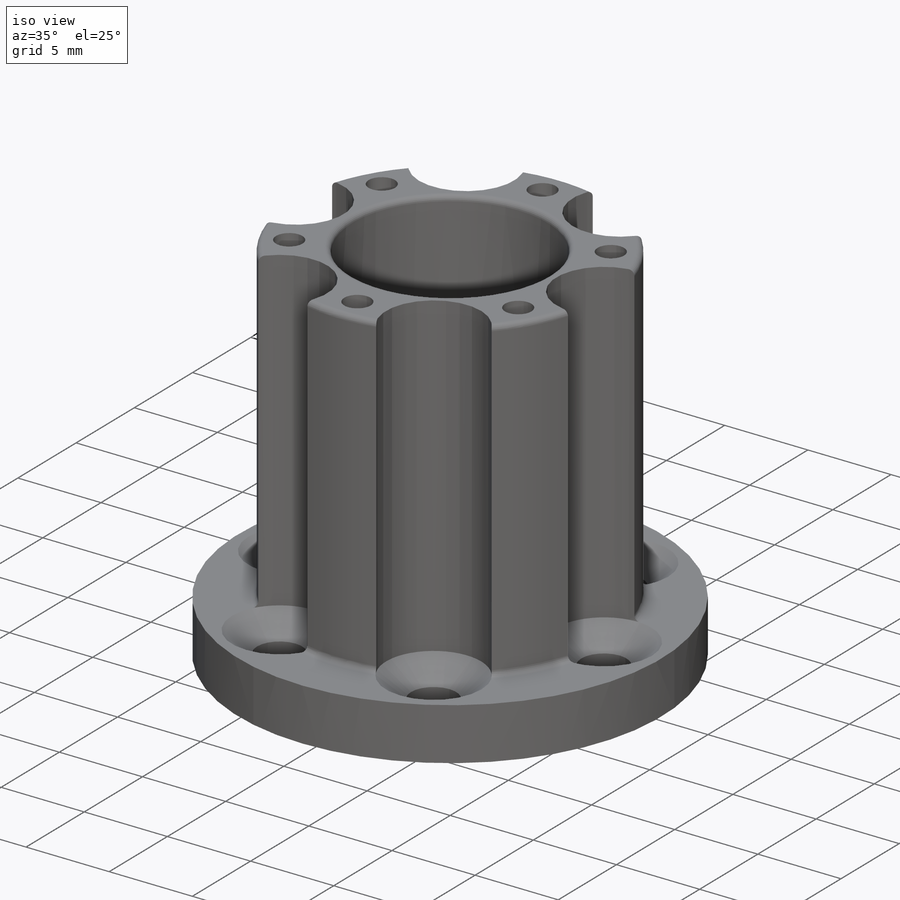
[diagram: iso view]
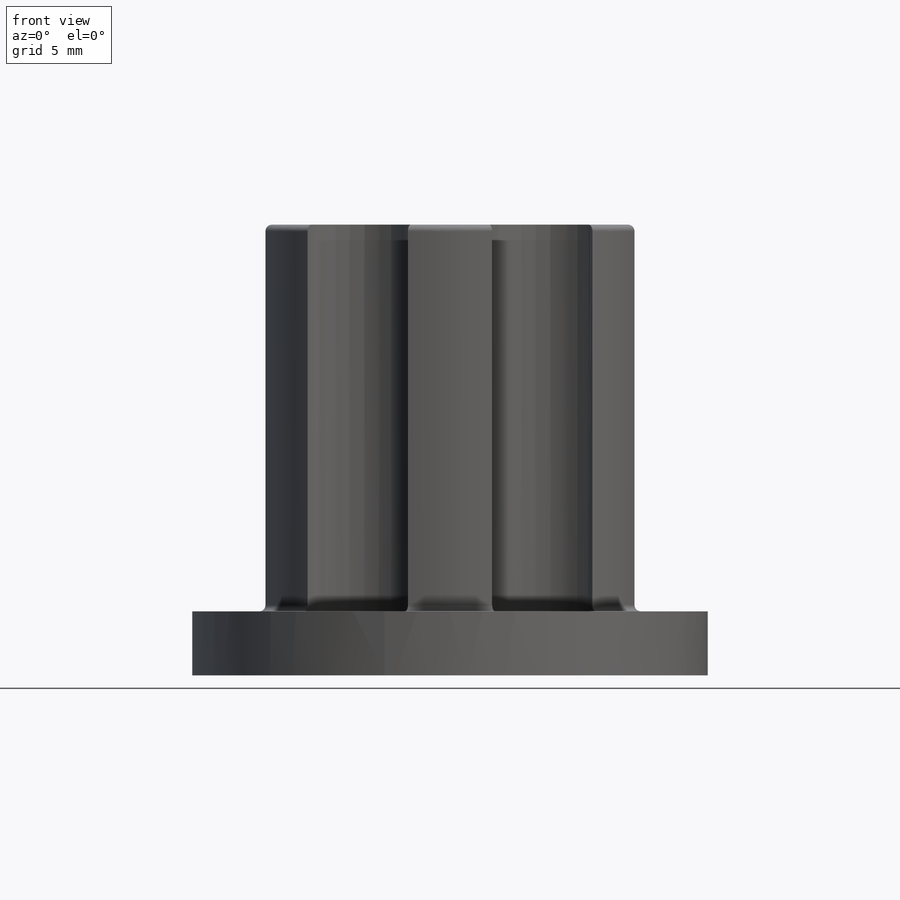
[diagram: front view]
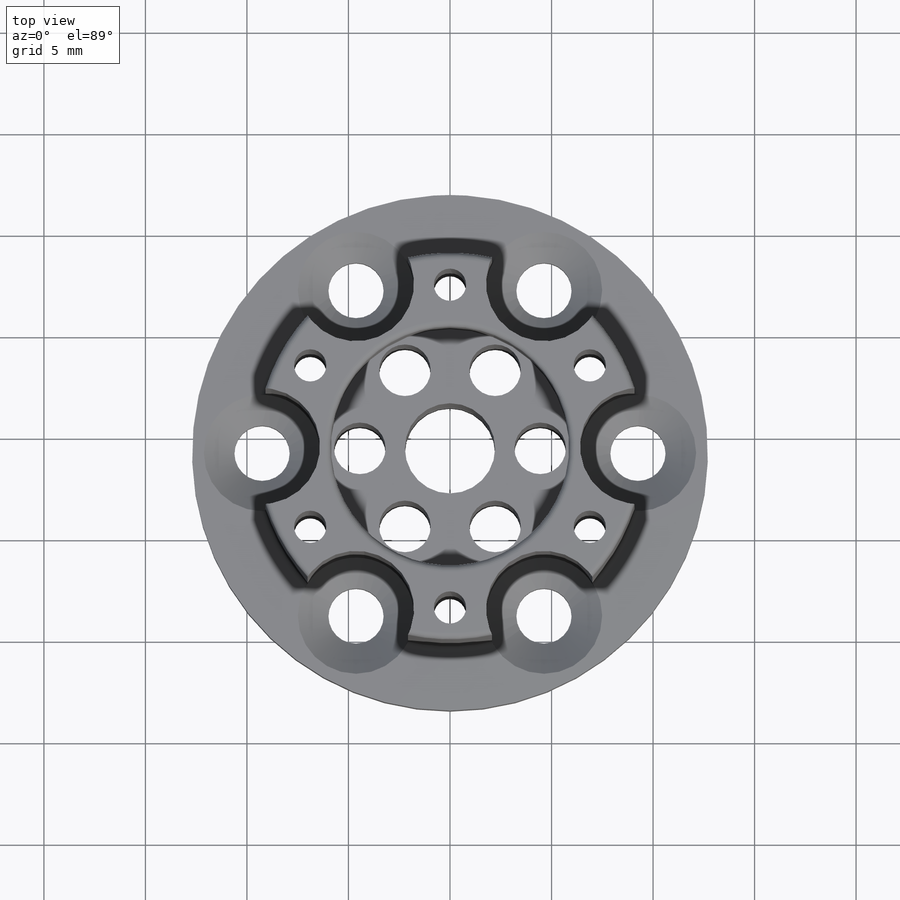
[diagram: top view]
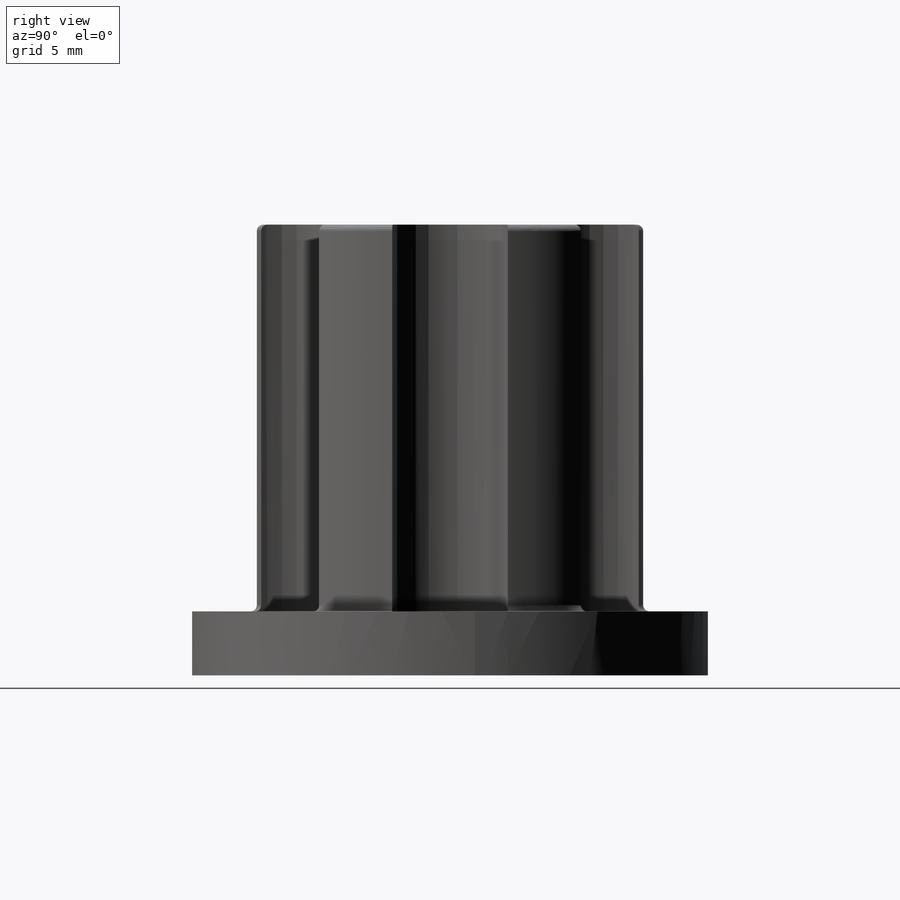
[diagram: right view]
SOLIDWORKS PART (.sldprt)
format: sldprt  version: not decoded by parser v0  size: 628,224 bytes
history: native  units: mm
features: sketch x9, cut_extrude x3, hole x3, extrude x2, fillet x2, move_body x2, material x1, plane x1 (+12 scaffold rows collapsed; 1 parser-record rows omitted)
feature tree (36):
  scaffold x12  (default folders/planes/origin — collapsed)
  material  "Material <not specified>"
  sketch  "Sketch2"  dims[D2=2000.0mm D1=1000.0mm]
  extrude  "Boss-Extrude1"  Depth=248mm
  sketch  "Sketch3"  dims[D1=1500.0mm]
  extrude  "Boss-Extrude2"  Depth=1500mm
  fillet  "Fillet1"  Radius=25mm
  sketch  "Sketch4"  dims[D1=450.0mm D2=6.0]
  cut_extrude  "Cut-Extrude1"  [1 undecoded]
  sketch  "Sketch5"  dims[D1=925.0mm]
  cut_extrude  "Cut-Extrude2"  Depth=500mm
  fillet  "Fillet2"  Radius=25mm
  sketch  "Sketch8"  dims[c1.D1=200.0mm c1.D2=350.0mm c1.D5=125.0mm c1.D4=~1138.383957mm c2.D4=30.0deg c2.D3=6.0 c2.D6=6.0]
  cut_extrude  "Cut-Extrude3"  [1 undecoded]
  hole  "CSK for 5/16 Flat Head Machine Screw (100)1"  Diameter=8.4328mm Depth=9.76378mm
  sketch  "Sketch10"  dims[c1.D1=~0.128811mm c2.D1=6.0]
  sketch  "Sketch9"  dims[hole-wizard template sketch: 54 standard entries collapsed; hole parameters kept: c17.Thru Hole Dia.=8.4328mm c17.Thru Hole Depth=~9.76378mm c17.Near C'Sink Dia.=17.78mm c17.D4=~3.666174mm c17.Near C'Sink Angle=100.0deg]
  move_body  "Body-Move/Copy1"
  parser-record x1  (decoder bookkeeping rows leaked as tree rows — omitted from the tree; the rows remain in map.json)
  sketch  "Sketch11"  dims[D1=~2.737767mm]
  plane  "Plane1"
  sketch  "Sketch12"  dims[D1=~30.964536mm]
  hole  "Scale2"  [1 undecoded]
  hole  "Scale3"  [1 undecoded]
  move_body  "Body-Move/Copy2"
decode coverage: 15 of 21 modeling features carry decoded parameters
note: ~ marks probable driven/reference dimensions
note: 4 parameter values undecoded
summary: no parameter record found for 4 features
note: suppression state not decoded; provenance and decode notes live in map.json
